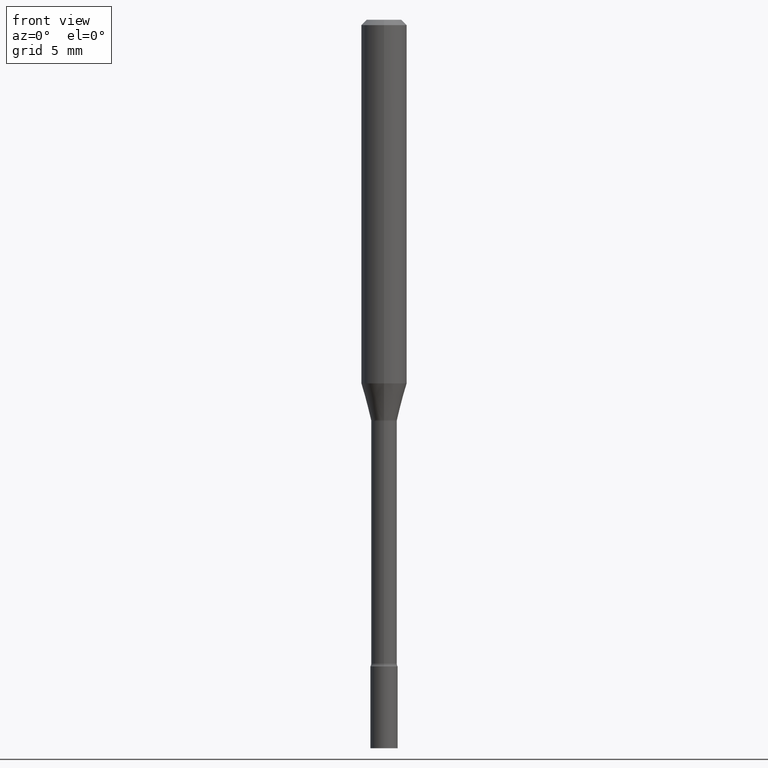
[diagram: clean part render]
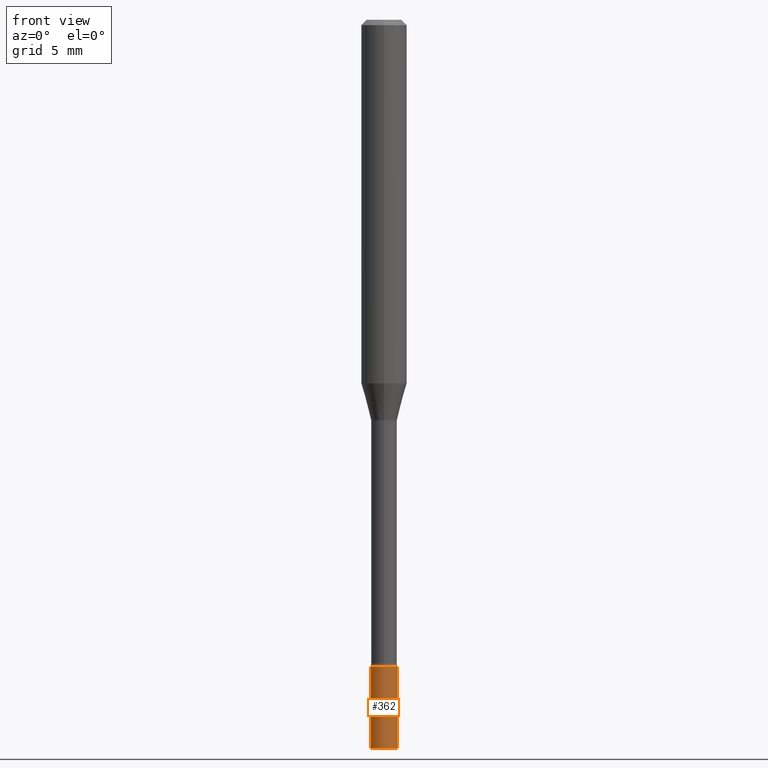
[diagram: same view with one face highlighted and labeled with its STEP entity id]
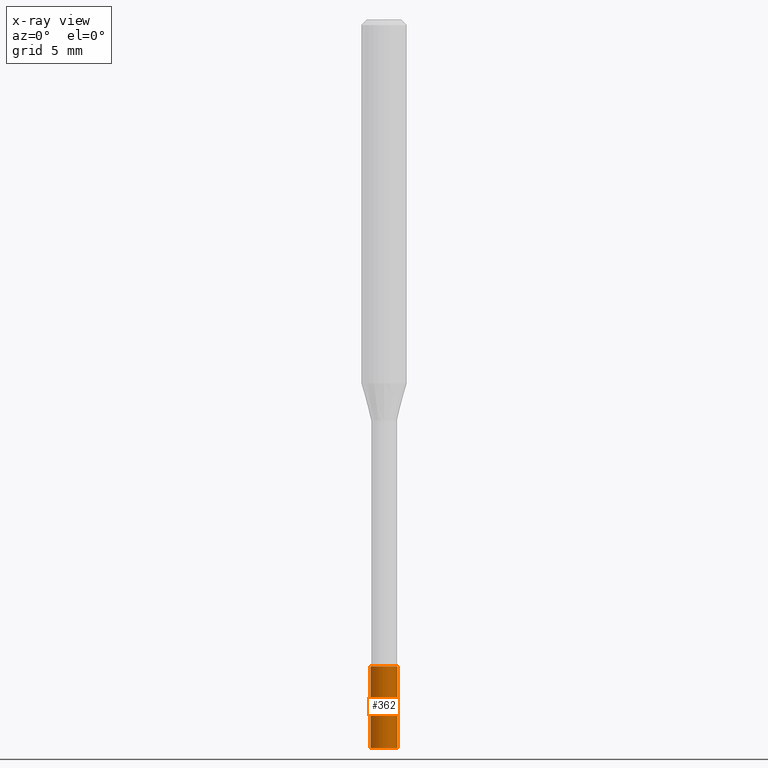
[diagram: x-ray of the same camera — body ghosted, the highlighted face saturated]
A machine part, front view. The second image highlights one B-rep face of the part: STEP entity #362.
The next image is the same camera in x-ray: the body ghosted, the highlighted face saturated — about 0% of this face is hidden behind the body in this view.
In plain terms, the highlighted cylindrical surface (edge-blend (fillet) strip) has radius 0.9525 mm, axis along (-0, 0, 1).
Its self-contained STEP definition (entity closure, byte-faithful):
#6 = VECTOR ( 'NONE', #322, 39.37007874015748143 ) ;
#8 = LINE ( 'NONE', #447, #256 ) ;
#10 = DIRECTION ( 'NONE',  ( 1.000000000000000000, -6.982962677686268288E-15, 0.000000000000000000 ) ) ;
#48 = CARTESIAN_POINT ( 'NONE',  ( -0.03749999999999999861, 2.664535259100375598E-16, -1.844600658845589458E-30 ) ) ;
#49 = CARTESIAN_POINT ( 'NONE',  ( -0.03749999999999999861, -6.323717501156401251E-15, -2.000000000000000000 ) ) ;
#55 = ORIENTED_EDGE ( 'NONE', *, *, #414, .F. ) ;
#60 = VERTEX_POINT ( 'NONE', #307 ) ;
#81 = AXIS2_PLACEMENT_3D ( 'NONE', #107, #113, #277 ) ;
#88 = CARTESIAN_POINT ( 'NONE',  ( 0.03749999999999999861, -7.244823778099525378E-15, -2.000000000000000000 ) ) ;
#107 = CARTESIAN_POINT ( 'NONE',  ( 4.890937612370273194E-29, -6.982962677686291165E-15, -2.000000000000000000 ) ) ;
#113 = DIRECTION ( 'NONE',  ( -2.445468806185136597E-29, 3.491481338843145583E-15, 1.000000000000000000 ) ) ;
#128 = EDGE_LOOP ( 'NONE', ( #489, #416, #212, #55 ) ) ;
#167 = DIRECTION ( 'NONE',  ( 1.000000000000000000, -6.982962677686266711E-15, 4.876176775795935793E-29 ) ) ;
#209 = CARTESIAN_POINT ( 'NONE',  ( 0.03749999999999999861, -6.459240476859818795E-15, -1.775000000000000133 ) ) ;
#212 = ORIENTED_EDGE ( 'NONE', *, *, #344, .T. ) ;
#214 = LINE ( 'NONE', #48, #6 ) ;
#253 = EDGE_CURVE ( 'NONE', #496, #363, #454, .T. ) ;
#255 = CARTESIAN_POINT ( 'NONE',  ( 0.000000000000000000, 0.000000000000000000, 0.000000000000000000 ) ) ;
#256 = VECTOR ( 'NONE', #290, 39.37007874015748143 ) ;
#258 = DIRECTION ( 'NONE',  ( -2.445468806185136597E-29, 3.491481338843145583E-15, 1.000000000000000000 ) ) ;
#277 = DIRECTION ( 'NONE',  ( 1.000000000000000000, -6.982962677686268288E-15, 0.000000000000000000 ) ) ;
#290 = DIRECTION ( 'NONE',  ( -2.445468806185136877E-29, 3.491481338843145188E-15, 1.000000000000000000 ) ) ;
#307 = CARTESIAN_POINT ( 'NONE',  ( -0.03749999999999999861, -6.323717501156401251E-15, -1.775000000000000133 ) ) ;
#321 = AXIS2_PLACEMENT_3D ( 'NONE', #405, #258, #10 ) ;
#322 = DIRECTION ( 'NONE',  ( -2.445468806185136877E-29, 3.491481338843145188E-15, 1.000000000000000000 ) ) ;
#325 = FACE_OUTER_BOUND ( 'NONE', #128, .T. ) ;
#344 = EDGE_CURVE ( 'NONE', #363, #500, #8, .T. ) ;
#362 = ADVANCED_FACE ( 'NONE', ( #325 ), #452, .T. ) ;
#363 = VERTEX_POINT ( 'NONE', #88 ) ;
#382 = AXIS2_PLACEMENT_3D ( 'NONE', #255, #407, #167 ) ;
#405 = CARTESIAN_POINT ( 'NONE',  ( 4.340707130978617347E-29, -6.197379376446583794E-15, -1.775000000000000133 ) ) ;
#407 = DIRECTION ( 'NONE',  ( -2.445468806185136597E-29, 3.491481338843145583E-15, 1.000000000000000000 ) ) ;
#414 = EDGE_CURVE ( 'NONE', #60, #500, #491, .T. ) ;
#416 = ORIENTED_EDGE ( 'NONE', *, *, #253, .T. ) ;
#429 = EDGE_CURVE ( 'NONE', #496, #60, #214, .T. ) ;
#447 = CARTESIAN_POINT ( 'NONE',  ( 0.03749999999999999861, -2.618611004132350016E-16, 1.828566290923475922E-30 ) ) ;
#452 = CYLINDRICAL_SURFACE ( 'NONE', #382, 0.03749999999999999861 ) ;
#454 = CIRCLE ( 'NONE', #81, 0.03749999999999999861 ) ;
#489 = ORIENTED_EDGE ( 'NONE', *, *, #429, .F. ) ;
#491 = CIRCLE ( 'NONE', #321, 0.03749999999999999861 ) ;
#496 = VERTEX_POINT ( 'NONE', #49 ) ;
#500 = VERTEX_POINT ( 'NONE', #209 ) ;